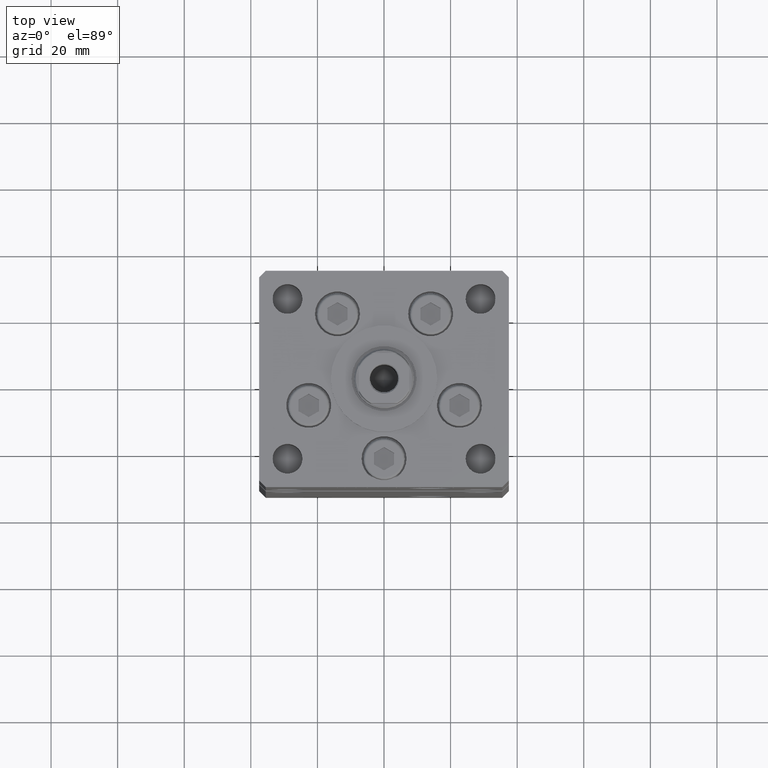
[diagram: clean part render]
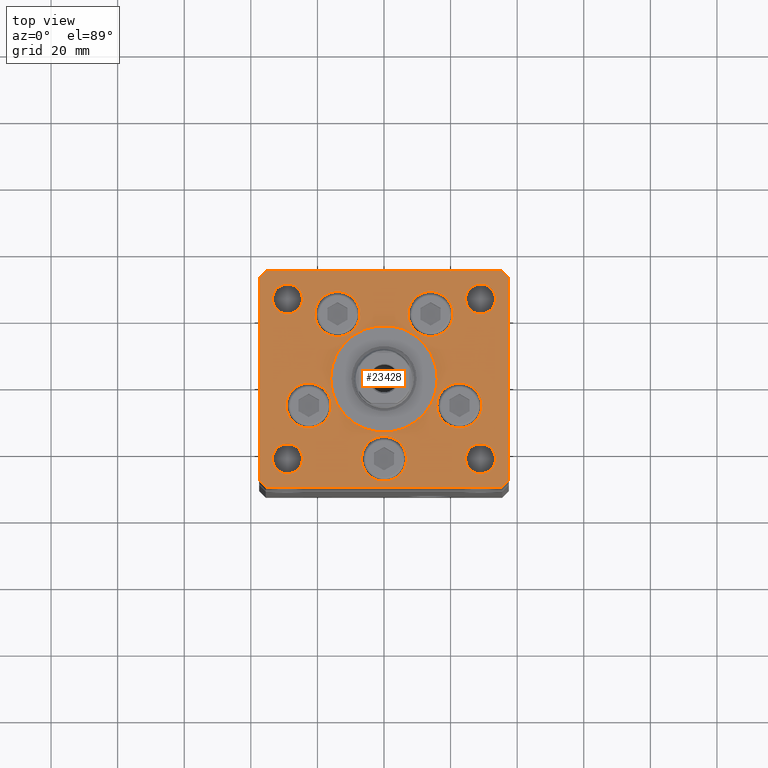
[diagram: same view with one face highlighted and labeled with its STEP entity id]
A machine part, top view. The second image highlights one B-rep face of the part: STEP entity #23428.
In plain terms, the highlighted planar face has unit normal (0, 0, 1).
Its self-contained STEP definition (entity closure, byte-faithful):
#728 = DIRECTION ( 'NONE',  ( 1.000000000000000000, 1.172770800660376149E-15, 0.000000000000000000 ) ) ;
#838 = CARTESIAN_POINT ( 'NONE',  ( 16.00000000000000355, -4.979459025271462852E-15, 0.000000000000000000 ) ) ;
#933 = FACE_BOUND ( 'NONE', #35361, .T. ) ;
#1097 = CARTESIAN_POINT ( 'NONE',  ( -22.62741699796953299, -8.000000000000000000, 0.000000000000000000 ) ) ;
#2275 = VERTEX_POINT ( 'NONE', #42089 ) ;
#2651 = VERTEX_POINT ( 'NONE', #14616 ) ;
#2680 = DIRECTION ( 'NONE',  ( 0.000000000000000000, 0.000000000000000000, 1.000000000000000000 ) ) ;
#3185 = AXIS2_PLACEMENT_3D ( 'NONE', #27086, #14708, #39719 ) ;
#3544 = AXIS2_PLACEMENT_3D ( 'NONE', #6546, #24521, #52767 ) ;
#3726 = DIRECTION ( 'NONE',  ( 0.7071067811865512365, -0.7071067811865439090, 0.000000000000000000 ) ) ;
#3897 = FACE_BOUND ( 'NONE', #16806, .T. ) ;
#4015 = DIRECTION ( 'NONE',  ( -0.000000000000000000, -0.000000000000000000, -1.000000000000000000 ) ) ;
#4097 = CIRCLE ( 'NONE', #14451, 16.00000000000000355 ) ;
#4686 = FACE_OUTER_BOUND ( 'NONE', #17369, .T. ) ;
#4735 = CARTESIAN_POINT ( 'NONE',  ( 29.00000000000000000, 24.00000000000000355, 0.000000000000000000 ) ) ;
#4926 = LINE ( 'NONE', #45529, #34797 ) ;
#4950 = CIRCLE ( 'NONE', #10113, 6.749999999999999112 ) ;
#4986 = LINE ( 'NONE', #52671, #7953 ) ;
#5832 = VERTEX_POINT ( 'NONE', #31796 ) ;
#5979 = VERTEX_POINT ( 'NONE', #33100 ) ;
#6174 = CARTESIAN_POINT ( 'NONE',  ( -29.00000000000000000, 24.00000000000000711, 0.000000000000000000 ) ) ;
#6189 = EDGE_CURVE ( 'NONE', #2275, #52399, #21608, .T. ) ;
#6251 = CIRCLE ( 'NONE', #36280, 16.00000000000000355 ) ;
#6415 = ORIENTED_EDGE ( 'NONE', *, *, #6189, .F. ) ;
#6546 = CARTESIAN_POINT ( 'NONE',  ( 13.99106857963324124, 19.50000000000000000, 0.000000000000000000 ) ) ;
#6592 = AXIS2_PLACEMENT_3D ( 'NONE', #23017, #31864, #18986 ) ;
#6615 = CIRCLE ( 'NONE', #35807, 4.500000000000000888 ) ;
#6690 = EDGE_CURVE ( 'NONE', #11295, #30827, #18207, .T. ) ;
#6711 = ORIENTED_EDGE ( 'NONE', *, *, #30146, .F. ) ;
#6818 = CARTESIAN_POINT ( 'NONE',  ( 33.50000000000000000, -23.99999999999999645, 0.000000000000000000 ) ) ;
#7153 = DIRECTION ( 'NONE',  ( 0.000000000000000000, 0.000000000000000000, 1.000000000000000000 ) ) ;
#7369 = CIRCLE ( 'NONE', #37419, 6.750000000000009770 ) ;
#7814 = CARTESIAN_POINT ( 'NONE',  ( 20.74106857963323947, 19.50000000000000000, 0.000000000000000000 ) ) ;
#7953 = VECTOR ( 'NONE', #3726, 1000.000000000000000 ) ;
#7973 = ORIENTED_EDGE ( 'NONE', *, *, #44880, .T. ) ;
#8313 = ORIENTED_EDGE ( 'NONE', *, *, #9889, .F. ) ;
#8518 = ORIENTED_EDGE ( 'NONE', *, *, #51299, .F. ) ;
#8564 = CARTESIAN_POINT ( 'NONE',  ( 37.50000000000000711, -30.49999999999992895, 0.000000000000000000 ) ) ;
#9051 = ORIENTED_EDGE ( 'NONE', *, *, #42325, .T. ) ;
#9142 = AXIS2_PLACEMENT_3D ( 'NONE', #18492, #7153, #23568 ) ;
#9147 = CARTESIAN_POINT ( 'NONE',  ( -7.241068579633241242, 19.50000000000000000, 0.000000000000000000 ) ) ;
#9584 = DIRECTION ( 'NONE',  ( 0.000000000000000000, 0.000000000000000000, 1.000000000000000000 ) ) ;
#9639 = CARTESIAN_POINT ( 'NONE',  ( 37.50000000000000711, 30.50000000000001421, 0.000000000000000000 ) ) ;
#9889 = EDGE_CURVE ( 'NONE', #12352, #2651, #19985, .T. ) ;
#9970 = EDGE_CURVE ( 'NONE', #17645, #29270, #34096, .T. ) ;
#9996 = CIRCLE ( 'NONE', #12550, 6.750000000000000000 ) ;
#10088 = ORIENTED_EDGE ( 'NONE', *, *, #9970, .T. ) ;
#10113 = AXIS2_PLACEMENT_3D ( 'NONE', #18613, #44123, #39040 ) ;
#10149 = CARTESIAN_POINT ( 'NONE',  ( -29.37741699796953654, -8.000000000000000000, 0.000000000000000000 ) ) ;
#10570 = LINE ( 'NONE', #26989, #29041 ) ;
#10934 = CARTESIAN_POINT ( 'NONE',  ( 29.00000000000000355, -23.99999999999999645, 0.000000000000000000 ) ) ;
#10979 = EDGE_CURVE ( 'NONE', #34666, #30069, #4986, .T. ) ;
#11062 = EDGE_CURVE ( 'NONE', #5979, #47334, #6251, .T. ) ;
#11287 = EDGE_CURVE ( 'NONE', #47614, #26217, #27812, .T. ) ;
#11295 = VERTEX_POINT ( 'NONE', #22998 ) ;
#11506 = DIRECTION ( 'NONE',  ( 1.000000000000000000, 0.000000000000000000, 0.000000000000000000 ) ) ;
#11539 = ORIENTED_EDGE ( 'NONE', *, *, #24432, .F. ) ;
#11574 = VERTEX_POINT ( 'NONE', #28011 ) ;
#11690 = EDGE_CURVE ( 'NONE', #21030, #51283, #27768, .T. ) ;
#11705 = LINE ( 'NONE', #23290, #19532 ) ;
#11880 = DIRECTION ( 'NONE',  ( 1.000000000000000000, 0.000000000000000000, 0.000000000000000000 ) ) ;
#12251 = DIRECTION ( 'NONE',  ( 1.000000000000000000, 0.000000000000000000, 0.000000000000000000 ) ) ;
#12352 = VERTEX_POINT ( 'NONE', #28806 ) ;
#12500 = FACE_BOUND ( 'NONE', #35518, .T. ) ;
#12550 = AXIS2_PLACEMENT_3D ( 'NONE', #24091, #28647, #12251 ) ;
#13135 = CIRCLE ( 'NONE', #50925, 6.750000000001552536 ) ;
#13780 = EDGE_CURVE ( 'NONE', #45257, #26159, #24351, .T. ) ;
#13850 = CARTESIAN_POINT ( 'NONE',  ( 35.50000000000000000, 32.49999999999999289, 0.000000000000000000 ) ) ;
#14055 = CARTESIAN_POINT ( 'NONE',  ( -33.50000000000000000, 24.00000000000000711, 0.000000000000000000 ) ) ;
#14451 = AXIS2_PLACEMENT_3D ( 'NONE', #22810, #35423, #51833 ) ;
#14498 = ORIENTED_EDGE ( 'NONE', *, *, #35541, .T. ) ;
#14616 = CARTESIAN_POINT ( 'NONE',  ( -24.50000000000000000, -23.99999999999999645, 0.000000000000000000 ) ) ;
#14708 = DIRECTION ( 'NONE',  ( 0.000000000000000000, 0.000000000000000000, 1.000000000000000000 ) ) ;
#14836 = AXIS2_PLACEMENT_3D ( 'NONE', #39529, #2680, #15307 ) ;
#15307 = DIRECTION ( 'NONE',  ( 1.000000000000000000, 0.000000000000000000, 0.000000000000000000 ) ) ;
#15662 = VERTEX_POINT ( 'NONE', #9147 ) ;
#16164 = EDGE_CURVE ( 'NONE', #26159, #45257, #13135, .T. ) ;
#16806 = EDGE_LOOP ( 'NONE', ( #6415, #19747 ) ) ;
#16964 = CARTESIAN_POINT ( 'NONE',  ( 37.50000000000000711, 30.50000000000001421, 0.000000000000000000 ) ) ;
#17019 = CIRCLE ( 'NONE', #47074, 6.749999999999997335 ) ;
#17077 = CARTESIAN_POINT ( 'NONE',  ( 0.000000000000000000, 0.000000000000000000, 0.000000000000000000 ) ) ;
#17169 = CARTESIAN_POINT ( 'NONE',  ( 35.50000000000000000, 32.49999999999999289, 0.000000000000000000 ) ) ;
#17369 = EDGE_LOOP ( 'NONE', ( #35694, #19585, #9051, #35642, #34082, #10088, #45699, #7973 ) ) ;
#17417 = CARTESIAN_POINT ( 'NONE',  ( -35.50000000000001421, -32.50000000000000711, 0.000000000000000000 ) ) ;
#17515 = DIRECTION ( 'NONE',  ( 0.000000000000000000, 0.000000000000000000, 1.000000000000000000 ) ) ;
#17645 = VERTEX_POINT ( 'NONE', #13850 ) ;
#18030 = DIRECTION ( 'NONE',  ( 0.000000000000000000, 0.000000000000000000, 1.000000000000000000 ) ) ;
#18178 = EDGE_LOOP ( 'NONE', ( #11539, #8313 ) ) ;
#18207 = CIRCLE ( 'NONE', #3544, 6.749999999999997335 ) ;
#18359 = AXIS2_PLACEMENT_3D ( 'NONE', #1097, #17515, #18581 ) ;
#18492 = CARTESIAN_POINT ( 'NONE',  ( -29.00000000000000000, -23.99999999999999645, 0.000000000000000000 ) ) ;
#18581 = DIRECTION ( 'NONE',  ( 1.000000000000000000, 0.000000000000000000, 0.000000000000000000 ) ) ;
#18613 = CARTESIAN_POINT ( 'NONE',  ( -22.62741699796953299, -8.000000000000000000, 0.000000000000000000 ) ) ;
#18758 = CARTESIAN_POINT ( 'NONE',  ( 22.62741699796953299, -8.000000000000000000, 0.000000000000000000 ) ) ;
#18775 = CIRCLE ( 'NONE', #48811, 6.750000000000009770 ) ;
#18986 = DIRECTION ( 'NONE',  ( -1.000000000000000000, 0.000000000000000000, 0.000000000000000000 ) ) ;
#19532 = VECTOR ( 'NONE', #23028, 1000.000000000000000 ) ;
#19538 = VERTEX_POINT ( 'NONE', #36601 ) ;
#19585 = ORIENTED_EDGE ( 'NONE', *, *, #28427, .T. ) ;
#19747 = ORIENTED_EDGE ( 'NONE', *, *, #26815, .F. ) ;
#19985 = CIRCLE ( 'NONE', #14836, 4.500000000000000888 ) ;
#20616 = EDGE_CURVE ( 'NONE', #29270, #19538, #4926, .T. ) ;
#20692 = DIRECTION ( 'NONE',  ( -1.000000000000000000, 0.000000000000000000, 0.000000000000000000 ) ) ;
#20706 = ORIENTED_EDGE ( 'NONE', *, *, #30137, .T. ) ;
#20854 = VECTOR ( 'NONE', #46730, 1000.000000000000000 ) ;
#21030 = VERTEX_POINT ( 'NONE', #50793 ) ;
#21608 = CIRCLE ( 'NONE', #44783, 4.500000000000000888 ) ;
#21637 = EDGE_LOOP ( 'NONE', ( #48383, #8518 ) ) ;
#21980 = ORIENTED_EDGE ( 'NONE', *, *, #28015, .F. ) ;
#22810 = CARTESIAN_POINT ( 'NONE',  ( 0.000000000000000000, -6.938893903907228378E-15, 0.000000000000000000 ) ) ;
#22966 = VERTEX_POINT ( 'NONE', #46504 ) ;
#22975 = EDGE_LOOP ( 'NONE', ( #49932, #30046 ) ) ;
#22998 = CARTESIAN_POINT ( 'NONE',  ( 7.241068579633242130, 19.50000000000000000, 0.000000000000000000 ) ) ;
#23017 = CARTESIAN_POINT ( 'NONE',  ( -29.00000000000000000, 24.00000000000000711, 0.000000000000000000 ) ) ;
#23028 = DIRECTION ( 'NONE',  ( 0.7071067811865463515, 0.7071067811865487940, 0.000000000000000000 ) ) ;
#23057 = AXIS2_PLACEMENT_3D ( 'NONE', #45157, #4015, #20692 ) ;
#23158 = EDGE_CURVE ( 'NONE', #5832, #52510, #7369, .T. ) ;
#23290 = CARTESIAN_POINT ( 'NONE',  ( 35.50000000000001421, -32.49999999999992184, 0.000000000000000000 ) ) ;
#23413 = CARTESIAN_POINT ( 'NONE',  ( -35.50000000000001421, -32.50000000000000711, 0.000000000000000000 ) ) ;
#23428 = ADVANCED_FACE ( 'NONE', ( #25129, #933, #12500, #45299, #40754, #45040, #46105, #3897, #33726, #4686, #50138 ), #29176, .T. ) ;
#23568 = DIRECTION ( 'NONE',  ( 1.000000000000000000, 0.000000000000000000, 0.000000000000000000 ) ) ;
#24091 = CARTESIAN_POINT ( 'NONE',  ( -13.99106857963324124, 19.50000000000000000, 0.000000000000000000 ) ) ;
#24340 = DIRECTION ( 'NONE',  ( 1.000000000000000000, 0.000000000000000000, 0.000000000000000000 ) ) ;
#24351 = CIRCLE ( 'NONE', #47586, 6.750000000001552536 ) ;
#24429 = EDGE_CURVE ( 'NONE', #22966, #42621, #31452, .T. ) ;
#24432 = EDGE_CURVE ( 'NONE', #2651, #12352, #29732, .T. ) ;
#24519 = EDGE_CURVE ( 'NONE', #52724, #15662, #9996, .T. ) ;
#24521 = DIRECTION ( 'NONE',  ( 0.000000000000000000, 0.000000000000000000, 1.000000000000000000 ) ) ;
#24623 = CIRCLE ( 'NONE', #6592, 4.500000000000000888 ) ;
#25129 = FACE_BOUND ( 'NONE', #46957, .T. ) ;
#25243 = CARTESIAN_POINT ( 'NONE',  ( -6.750000000001552536, -24.00000000000001066, 0.000000000000000000 ) ) ;
#25425 = DIRECTION ( 'NONE',  ( 0.000000000000000000, 0.000000000000000000, 1.000000000000000000 ) ) ;
#25447 = CARTESIAN_POINT ( 'NONE',  ( -37.50000000000000000, -30.50000000000004263, 0.000000000000000000 ) ) ;
#25531 = DIRECTION ( 'NONE',  ( 0.000000000000000000, 0.000000000000000000, 1.000000000000000000 ) ) ;
#25703 = CARTESIAN_POINT ( 'NONE',  ( 0.000000000000000000, -6.938893903907228378E-15, 0.000000000000000000 ) ) ;
#25996 = VERTEX_POINT ( 'NONE', #26971 ) ;
#26027 = DIRECTION ( 'NONE',  ( 1.000000000000000000, 0.000000000000000000, 0.000000000000000000 ) ) ;
#26057 = VECTOR ( 'NONE', #44219, 1000.000000000000000 ) ;
#26159 = VERTEX_POINT ( 'NONE', #46275 ) ;
#26217 = VERTEX_POINT ( 'NONE', #16964 ) ;
#26815 = EDGE_CURVE ( 'NONE', #52399, #2275, #6615, .T. ) ;
#26971 = CARTESIAN_POINT ( 'NONE',  ( -24.50000000000000000, 24.00000000000000711, 0.000000000000000000 ) ) ;
#26989 = CARTESIAN_POINT ( 'NONE',  ( -37.50000000000001421, 30.50000000000000000, 0.000000000000000000 ) ) ;
#27086 = CARTESIAN_POINT ( 'NONE',  ( -13.99106857963324124, 19.50000000000000000, 0.000000000000000000 ) ) ;
#27768 = CIRCLE ( 'NONE', #18359, 6.749999999999999112 ) ;
#27812 = LINE ( 'NONE', #35866, #26057 ) ;
#28011 = CARTESIAN_POINT ( 'NONE',  ( 35.50000000000001421, -32.49999999999992184, 0.000000000000000000 ) ) ;
#28015 = EDGE_CURVE ( 'NONE', #51283, #21030, #4950, .T. ) ;
#28072 = CARTESIAN_POINT ( 'NONE',  ( 15.87741699796952410, -8.000000000000000000, 0.000000000000000000 ) ) ;
#28427 = EDGE_CURVE ( 'NONE', #30069, #11574, #37291, .T. ) ;
#28647 = DIRECTION ( 'NONE',  ( 0.000000000000000000, 0.000000000000000000, 1.000000000000000000 ) ) ;
#28806 = CARTESIAN_POINT ( 'NONE',  ( -33.50000000000000000, -23.99999999999999645, 0.000000000000000000 ) ) ;
#29041 = VECTOR ( 'NONE', #43395, 1000.000000000000000 ) ;
#29176 = PLANE ( 'NONE',  #36542 ) ;
#29270 = VERTEX_POINT ( 'NONE', #46720 ) ;
#29711 = DIRECTION ( 'NONE',  ( -0.000000000000000000, 0.000000000000000000, 1.000000000000000000 ) ) ;
#29732 = CIRCLE ( 'NONE', #9142, 4.500000000000000888 ) ;
#30046 = ORIENTED_EDGE ( 'NONE', *, *, #13780, .F. ) ;
#30069 = VERTEX_POINT ( 'NONE', #23413 ) ;
#30095 = LINE ( 'NONE', #9639, #34075 ) ;
#30137 = EDGE_CURVE ( 'NONE', #42621, #22966, #35060, .T. ) ;
#30146 = EDGE_CURVE ( 'NONE', #30827, #11295, #17019, .T. ) ;
#30363 = ORIENTED_EDGE ( 'NONE', *, *, #31363, .F. ) ;
#30827 = VERTEX_POINT ( 'NONE', #7814 ) ;
#31363 = EDGE_CURVE ( 'NONE', #15662, #52724, #49553, .T. ) ;
#31452 = CIRCLE ( 'NONE', #47763, 4.499999999999997335 ) ;
#31476 = VERTEX_POINT ( 'NONE', #14055 ) ;
#31796 = CARTESIAN_POINT ( 'NONE',  ( 29.37741699796954364, -8.000000000000000000, 0.000000000000000000 ) ) ;
#31864 = DIRECTION ( 'NONE',  ( -0.000000000000000000, -0.000000000000000000, -1.000000000000000000 ) ) ;
#31939 = DIRECTION ( 'NONE',  ( 0.000000000000000000, 0.000000000000000000, 1.000000000000000000 ) ) ;
#33100 = CARTESIAN_POINT ( 'NONE',  ( -16.00000000000000355, -6.938893903907228378E-15, 0.000000000000000000 ) ) ;
#33608 = EDGE_CURVE ( 'NONE', #47334, #5979, #4097, .T. ) ;
#33726 = FACE_BOUND ( 'NONE', #18178, .T. ) ;
#33858 = DIRECTION ( 'NONE',  ( 1.000000000000000000, 0.000000000000000000, 0.000000000000000000 ) ) ;
#33971 = DIRECTION ( 'NONE',  ( -0.7071067811865524577, -0.7071067811865426878, 0.000000000000000000 ) ) ;
#34075 = VECTOR ( 'NONE', #46746, 1000.000000000000000 ) ;
#34082 = ORIENTED_EDGE ( 'NONE', *, *, #40958, .T. ) ;
#34096 = LINE ( 'NONE', #17169, #20854 ) ;
#34666 = VERTEX_POINT ( 'NONE', #25447 ) ;
#34797 = VECTOR ( 'NONE', #33971, 1000.000000000000000 ) ;
#34917 = DIRECTION ( 'NONE',  ( 1.000000000000000000, 0.000000000000000000, 0.000000000000000000 ) ) ;
#34955 = ORIENTED_EDGE ( 'NONE', *, *, #24429, .T. ) ;
#35060 = CIRCLE ( 'NONE', #23057, 4.499999999999997335 ) ;
#35146 = DIRECTION ( 'NONE',  ( 0.000000000000000000, 0.000000000000000000, 1.000000000000000000 ) ) ;
#35361 = EDGE_LOOP ( 'NONE', ( #30363, #43047 ) ) ;
#35423 = DIRECTION ( 'NONE',  ( 0.000000000000000000, 0.000000000000000000, 1.000000000000000000 ) ) ;
#35518 = EDGE_LOOP ( 'NONE', ( #6711, #51024 ) ) ;
#35541 = EDGE_CURVE ( 'NONE', #31476, #25996, #41079, .T. ) ;
#35642 = ORIENTED_EDGE ( 'NONE', *, *, #11287, .T. ) ;
#35694 = ORIENTED_EDGE ( 'NONE', *, *, #10979, .T. ) ;
#35807 = AXIS2_PLACEMENT_3D ( 'NONE', #44945, #41180, #11880 ) ;
#35866 = CARTESIAN_POINT ( 'NONE',  ( 37.50000000000000711, -30.49999999999992895, 0.000000000000000000 ) ) ;
#36280 = AXIS2_PLACEMENT_3D ( 'NONE', #25703, #25425, #52413 ) ;
#36542 = AXIS2_PLACEMENT_3D ( 'NONE', #17077, #29711, #24340 ) ;
#36601 = CARTESIAN_POINT ( 'NONE',  ( -37.50000000000001421, 30.50000000000000000, 0.000000000000000000 ) ) ;
#36735 = VECTOR ( 'NONE', #728, 1000.000000000000000 ) ;
#36769 = CARTESIAN_POINT ( 'NONE',  ( 22.62741699796953299, -8.000000000000000000, 0.000000000000000000 ) ) ;
#37291 = LINE ( 'NONE', #17417, #36735 ) ;
#37419 = AXIS2_PLACEMENT_3D ( 'NONE', #36769, #48888, #11506 ) ;
#38039 = EDGE_LOOP ( 'NONE', ( #39127, #21980 ) ) ;
#39040 = DIRECTION ( 'NONE',  ( 1.000000000000000000, 0.000000000000000000, 0.000000000000000000 ) ) ;
#39127 = ORIENTED_EDGE ( 'NONE', *, *, #11690, .F. ) ;
#39234 = CARTESIAN_POINT ( 'NONE',  ( 0.000000000000000000, -24.00000000000001066, 0.000000000000000000 ) ) ;
#39529 = CARTESIAN_POINT ( 'NONE',  ( -29.00000000000000000, -23.99999999999999645, 0.000000000000000000 ) ) ;
#39719 = DIRECTION ( 'NONE',  ( 1.000000000000000000, 0.000000000000000000, 0.000000000000000000 ) ) ;
#39979 = DIRECTION ( 'NONE',  ( -0.000000000000000000, -0.000000000000000000, -1.000000000000000000 ) ) ;
#40120 = CARTESIAN_POINT ( 'NONE',  ( -20.74106857963324302, 19.50000000000000000, 0.000000000000000000 ) ) ;
#40754 = FACE_BOUND ( 'NONE', #22975, .T. ) ;
#40958 = EDGE_CURVE ( 'NONE', #26217, #17645, #30095, .T. ) ;
#41079 = CIRCLE ( 'NONE', #43673, 4.500000000000000888 ) ;
#41180 = DIRECTION ( 'NONE',  ( 0.000000000000000000, 0.000000000000000000, 1.000000000000000000 ) ) ;
#41491 = EDGE_CURVE ( 'NONE', #25996, #31476, #24623, .T. ) ;
#41674 = DIRECTION ( 'NONE',  ( 1.000000000000000000, 0.000000000000000000, 0.000000000000000000 ) ) ;
#41692 = ORIENTED_EDGE ( 'NONE', *, *, #33608, .F. ) ;
#42089 = CARTESIAN_POINT ( 'NONE',  ( 33.50000000000000000, 24.00000000000000355, 0.000000000000000000 ) ) ;
#42233 = DIRECTION ( 'NONE',  ( -0.000000000000000000, -0.000000000000000000, -1.000000000000000000 ) ) ;
#42325 = EDGE_CURVE ( 'NONE', #11574, #47614, #11705, .T. ) ;
#42621 = VERTEX_POINT ( 'NONE', #6818 ) ;
#42766 = DIRECTION ( 'NONE',  ( -1.000000000000000000, 0.000000000000000000, 0.000000000000000000 ) ) ;
#43047 = ORIENTED_EDGE ( 'NONE', *, *, #24519, .F. ) ;
#43395 = DIRECTION ( 'NONE',  ( 2.275047181608926165E-16, -1.000000000000000000, 0.000000000000000000 ) ) ;
#43673 = AXIS2_PLACEMENT_3D ( 'NONE', #6174, #42233, #42766 ) ;
#44009 = DIRECTION ( 'NONE',  ( -1.000000000000000000, 0.000000000000000000, 0.000000000000000000 ) ) ;
#44123 = DIRECTION ( 'NONE',  ( 0.000000000000000000, 0.000000000000000000, 1.000000000000000000 ) ) ;
#44219 = DIRECTION ( 'NONE',  ( 0.000000000000000000, 1.000000000000000000, 0.000000000000000000 ) ) ;
#44783 = AXIS2_PLACEMENT_3D ( 'NONE', #4735, #9584, #50733 ) ;
#44880 = EDGE_CURVE ( 'NONE', #19538, #34666, #10570, .T. ) ;
#44945 = CARTESIAN_POINT ( 'NONE',  ( 29.00000000000000000, 24.00000000000000355, 0.000000000000000000 ) ) ;
#45040 = FACE_BOUND ( 'NONE', #38039, .T. ) ;
#45157 = CARTESIAN_POINT ( 'NONE',  ( 29.00000000000000355, -23.99999999999999645, 0.000000000000000000 ) ) ;
#45257 = VERTEX_POINT ( 'NONE', #25243 ) ;
#45299 = FACE_BOUND ( 'NONE', #21637, .T. ) ;
#45529 = CARTESIAN_POINT ( 'NONE',  ( -35.50000000000000711, 32.49999999999997868, 0.000000000000000000 ) ) ;
#45699 = ORIENTED_EDGE ( 'NONE', *, *, #20616, .T. ) ;
#46105 = FACE_BOUND ( 'NONE', #51505, .T. ) ;
#46197 = CARTESIAN_POINT ( 'NONE',  ( 24.50000000000000000, 24.00000000000000355, 0.000000000000000000 ) ) ;
#46245 = ORIENTED_EDGE ( 'NONE', *, *, #11062, .F. ) ;
#46275 = CARTESIAN_POINT ( 'NONE',  ( 6.750000000001552536, -24.00000000000001066, 0.000000000000000000 ) ) ;
#46504 = CARTESIAN_POINT ( 'NONE',  ( 24.50000000000000711, -23.99999999999999645, 0.000000000000000000 ) ) ;
#46720 = CARTESIAN_POINT ( 'NONE',  ( -35.50000000000000711, 32.49999999999997868, 0.000000000000000000 ) ) ;
#46730 = DIRECTION ( 'NONE',  ( -1.000000000000000000, -1.954618001100627573E-16, 0.000000000000000000 ) ) ;
#46746 = DIRECTION ( 'NONE',  ( -0.7071067811865524577, 0.7071067811865426878, 0.000000000000000000 ) ) ;
#46766 = CARTESIAN_POINT ( 'NONE',  ( 0.000000000000000000, -24.00000000000001066, 0.000000000000000000 ) ) ;
#46957 = EDGE_LOOP ( 'NONE', ( #46245, #41692 ) ) ;
#47074 = AXIS2_PLACEMENT_3D ( 'NONE', #49461, #25531, #41674 ) ;
#47114 = EDGE_LOOP ( 'NONE', ( #20706, #34955 ) ) ;
#47334 = VERTEX_POINT ( 'NONE', #838 ) ;
#47586 = AXIS2_PLACEMENT_3D ( 'NONE', #46766, #18030, #33858 ) ;
#47614 = VERTEX_POINT ( 'NONE', #8564 ) ;
#47763 = AXIS2_PLACEMENT_3D ( 'NONE', #10934, #39979, #44009 ) ;
#48383 = ORIENTED_EDGE ( 'NONE', *, *, #23158, .F. ) ;
#48811 = AXIS2_PLACEMENT_3D ( 'NONE', #18758, #35146, #26027 ) ;
#48888 = DIRECTION ( 'NONE',  ( 0.000000000000000000, 0.000000000000000000, 1.000000000000000000 ) ) ;
#49461 = CARTESIAN_POINT ( 'NONE',  ( 13.99106857963324124, 19.50000000000000000, 0.000000000000000000 ) ) ;
#49553 = CIRCLE ( 'NONE', #3185, 6.750000000000000000 ) ;
#49932 = ORIENTED_EDGE ( 'NONE', *, *, #16164, .F. ) ;
#50138 = FACE_BOUND ( 'NONE', #47114, .T. ) ;
#50733 = DIRECTION ( 'NONE',  ( 1.000000000000000000, 0.000000000000000000, 0.000000000000000000 ) ) ;
#50793 = CARTESIAN_POINT ( 'NONE',  ( -15.87741699796953476, -8.000000000000000000, 0.000000000000000000 ) ) ;
#50925 = AXIS2_PLACEMENT_3D ( 'NONE', #39234, #31939, #34917 ) ;
#51024 = ORIENTED_EDGE ( 'NONE', *, *, #6690, .F. ) ;
#51283 = VERTEX_POINT ( 'NONE', #10149 ) ;
#51299 = EDGE_CURVE ( 'NONE', #52510, #5832, #18775, .T. ) ;
#51505 = EDGE_LOOP ( 'NONE', ( #52871, #14498 ) ) ;
#51833 = DIRECTION ( 'NONE',  ( 1.000000000000000000, 0.000000000000000000, 0.000000000000000000 ) ) ;
#52399 = VERTEX_POINT ( 'NONE', #46197 ) ;
#52413 = DIRECTION ( 'NONE',  ( 1.000000000000000000, 0.000000000000000000, 0.000000000000000000 ) ) ;
#52510 = VERTEX_POINT ( 'NONE', #28072 ) ;
#52671 = CARTESIAN_POINT ( 'NONE',  ( -37.50000000000000000, -30.50000000000004263, 0.000000000000000000 ) ) ;
#52724 = VERTEX_POINT ( 'NONE', #40120 ) ;
#52767 = DIRECTION ( 'NONE',  ( 1.000000000000000000, 0.000000000000000000, 0.000000000000000000 ) ) ;
#52871 = ORIENTED_EDGE ( 'NONE', *, *, #41491, .T. ) ;